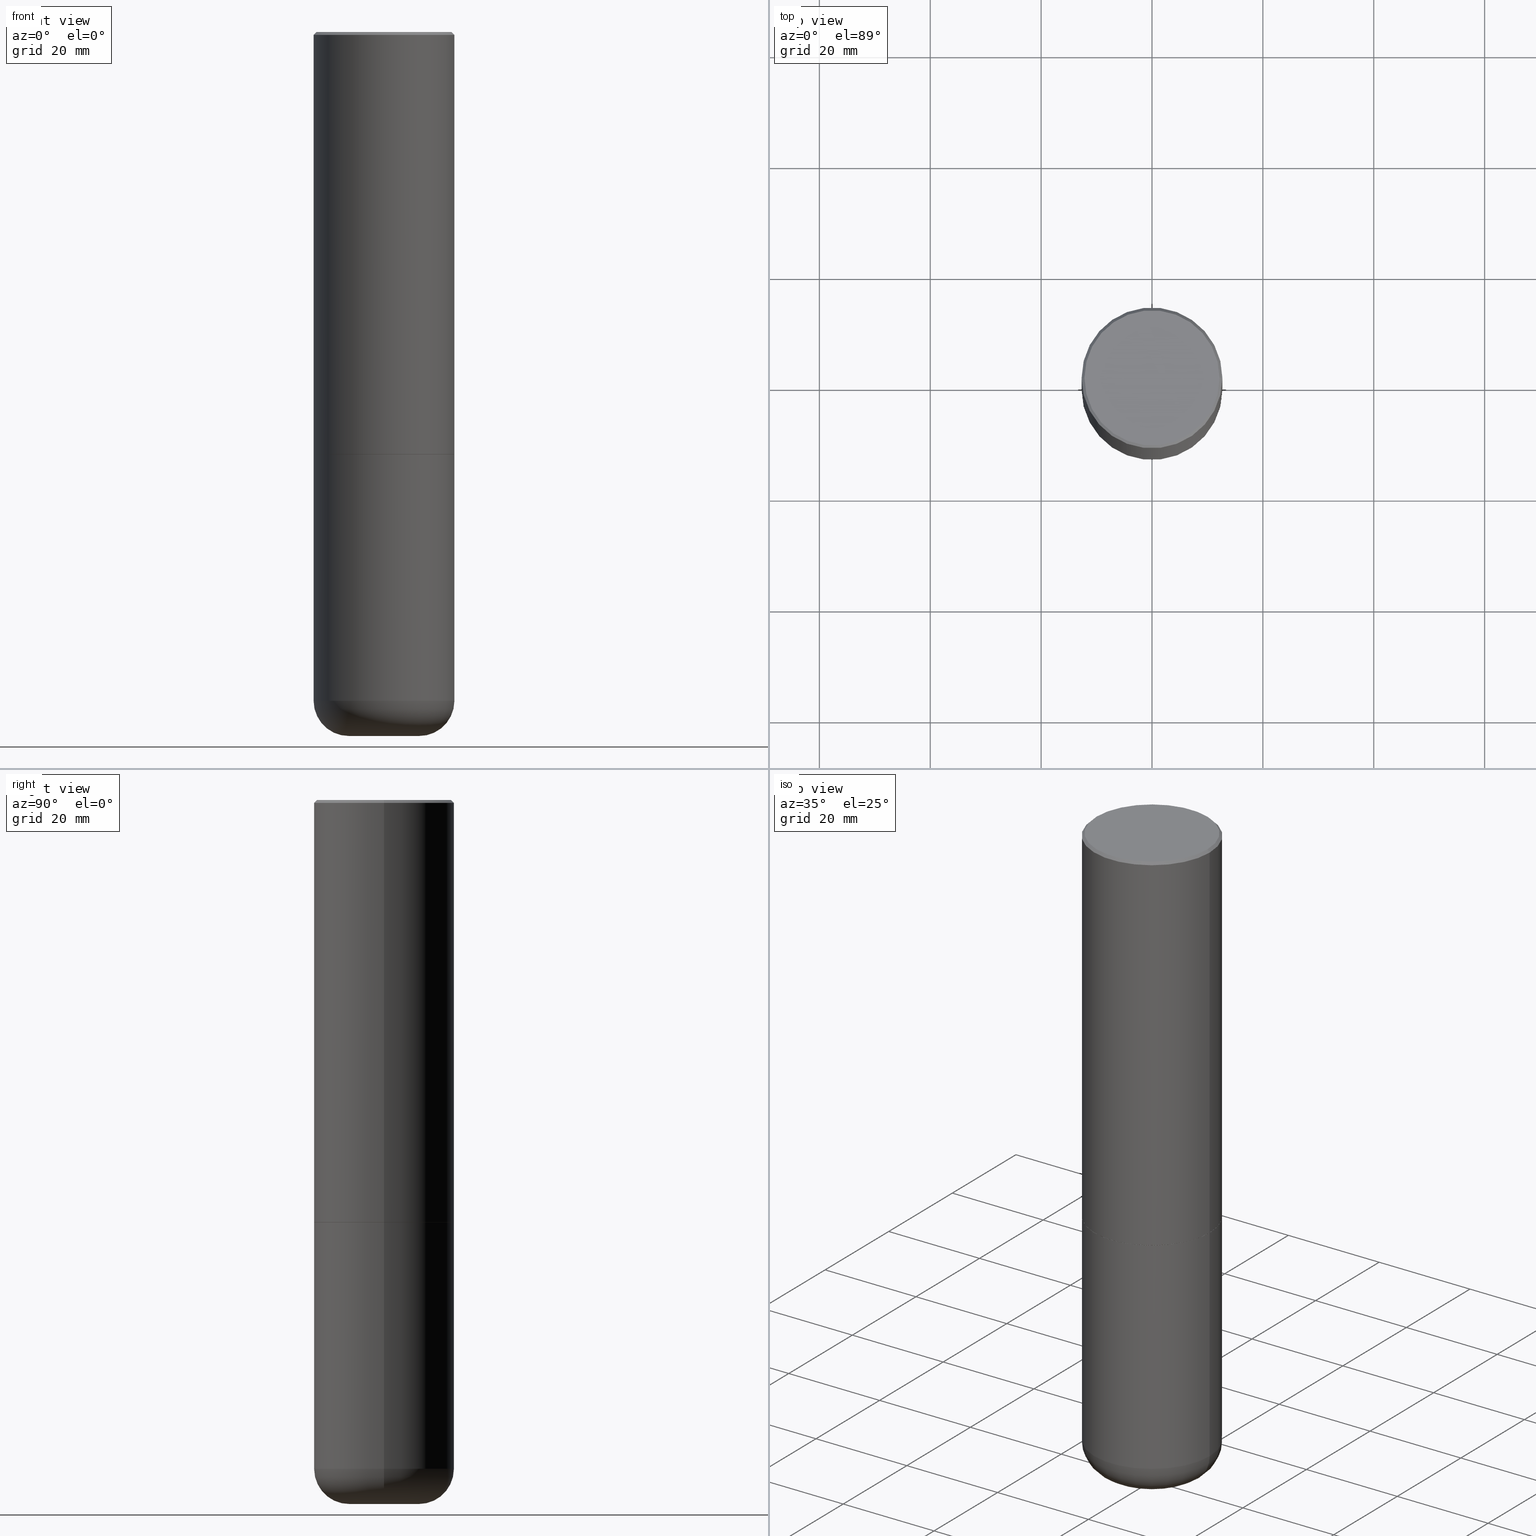
[diagram: canonical four-view strip — front | top / right | iso, engineering-drawing reading convention]
A machine part, canonical four-view strip (front | top / right | iso — engineering-drawing reading convention). The complete STEP part file that produces these views, byte-faithful:
ISO-10303-21;
HEADER;
FILE_DESCRIPTION (( 'STEP AP203' ),
    '1' );
FILE_NAME ('35738.STEP',
    '2022-11-02T20:57:26',
    ( '' ),
    ( '' ),
    'SwSTEP 2.0',
    'SolidWorks 2022',
    '' );
FILE_SCHEMA (( 'CONFIG_CONTROL_DESIGN' ));
ENDSEC;

DATA;
#1 = CARTESIAN_POINT ( 'NONE',  ( 7.336406418555412032E-29, -1.047444401652943951E-14, -3.000000000000000888 ) ) ;
#2 = CIRCLE ( 'NONE', #133, 0.1944883661254080409 ) ;
#3 = PERSON_AND_ORGANIZATION ( #244, #355 ) ;
#4 = EDGE_LOOP ( 'NONE', ( #361, #158, #465, #38 ) ) ;
#5 = EDGE_CURVE ( 'NONE', #388, #153, #377, .T. ) ;
#6 = DIRECTION ( 'NONE',  ( -2.445468806185136597E-29, 3.491481338843145583E-15, 1.000000000000000000 ) ) ;
#7 = ORIENTED_EDGE ( 'NONE', *, *, #452, .T. ) ;
#8 = DIRECTION ( 'NONE',  ( -1.000000000000000000, 6.982962677686265133E-15, 0.000000000000000000 ) ) ;
#9 = DATE_AND_TIME ( #380, #43 ) ;
#10 = ORIENTED_EDGE ( 'NONE', *, *, #85, .F. ) ;
#11 = AXIS2_PLACEMENT_3D ( 'NONE', #78, #350, #420 ) ;
#12 = APPROVAL_PERSON_ORGANIZATION ( #3, #243, #222 ) ;
#13 = DIRECTION ( 'NONE',  ( -1.000000000000000000, 6.982962677686265922E-15, -4.876176775795935793E-29 ) ) ;
#14 = ORIENTED_EDGE ( 'NONE', *, *, #261, .T. ) ;
#15 = DIRECTION ( 'NONE',  ( -2.445468806185136877E-29, 3.491481338843145188E-15, 1.000000000000000000 ) ) ;
#16 = EDGE_LOOP ( 'NONE', ( #359, #430, #419, #10 ) ) ;
#17 = ADVANCED_FACE ( 'NONE', ( #189 ), #479, .T. ) ;
#18 = APPLICATION_CONTEXT ( 'configuration controlled 3d designs of mechanical parts and assemblies' ) ;
#19 = CARTESIAN_POINT ( 'NONE',  ( 3.491481338843206325E-15, 0.4999999999999895639, -3.000000000000001776 ) ) ;
#20 = VERTEX_POINT ( 'NONE', #45 ) ;
#21 = ADVANCED_BREP_SHAPE_REPRESENTATION ( '35738', ( #310, #472, #321 ), #42 ) ;
#22 = AXIS2_PLACEMENT_3D ( 'NONE', #435, #212, #282 ) ;
#23 = DIRECTION ( 'NONE',  ( 1.000000000000000000, -6.982962677686266711E-15, 4.876176775795935793E-29 ) ) ;
#24 = AXIS2_PLACEMENT_3D ( 'NONE', #327, #98, #253 ) ;
#25 = LINE ( 'NONE', #398, #438 ) ;
#26 = EDGE_CURVE ( 'NONE', #342, #80, #62, .T. ) ;
#27 = DIRECTION ( 'NONE',  ( -0.7071067811865471286, 2.468850131082252722E-15, -0.7071067811865479058 ) ) ;
#28 = DIRECTION ( 'NONE',  ( -1.000000000000000000, 6.982962677686265922E-15, -4.876176775795935793E-29 ) ) ;
#29 = CC_DESIGN_APPROVAL ( #243, ( #315 ) ) ;
#30 = LINE ( 'NONE', #32, #231 ) ;
#31 = LINE ( 'NONE', #135, #394 ) ;
#32 = CARTESIAN_POINT ( 'NONE',  ( -0.2478183661254080850, -1.572690029271681563E-14, -5.000000000000000000 ) ) ;
#33 = AXIS2_PLACEMENT_3D ( 'NONE', #399, #326, #209 ) ;
#34 = CIRCLE ( 'NONE', #215, 0.2478183661254080850 ) ;
#35 = DIRECTION ( 'NONE',  ( 1.000000000000000000, 0.000000000000000000, 0.000000000000000000 ) ) ;
#36 = EDGE_LOOP ( 'NONE', ( #54, #322 ) ) ;
#37 = COORDINATED_UNIVERSAL_TIME_OFFSET ( 5, 0, .BEHIND. ) ;
#38 = ORIENTED_EDGE ( 'NONE', *, *, #260, .F. ) ;
#39 = APPROVAL_DATE_TIME ( #262, #64 ) ;
#40 = ORIENTED_EDGE ( 'NONE', *, *, #312, .T. ) ;
#41 = EDGE_LOOP ( 'NONE', ( #297, #109, #428, #351 ) ) ;
#42 =( GEOMETRIC_REPRESENTATION_CONTEXT ( 3 ) GLOBAL_UNCERTAINTY_ASSIGNED_CONTEXT ( ( #473 ) ) GLOBAL_UNIT_ASSIGNED_CONTEXT ( ( #439, #486, #298 ) ) REPRESENTATION_CONTEXT ( 'NONE', 'WORKASPACE' ) );
#43 = LOCAL_TIME ( 16, 57, 26.00000000000000000, #307 ) ;
#44 = DIRECTION ( 'NONE',  ( 1.000000000000000000, -6.982962677686266711E-15, 0.000000000000000000 ) ) ;
#45 = CARTESIAN_POINT ( 'NONE',  ( 1.220959705040374612E-28, -1.743206870946759098E-14, -4.992742912738427741 ) ) ;
#46 = FACE_OUTER_BOUND ( 'NONE', #425, .T. ) ;
#47 = ORIENTED_EDGE ( 'NONE', *, *, #186, .F. ) ;
#48 = CARTESIAN_POINT ( 'NONE',  ( 0.2478183661254080850, -1.915756409883010398E-14, -5.000000000000000000 ) ) ;
#49 = VERTEX_POINT ( 'NONE', #117 ) ;
#50 = FACE_OUTER_BOUND ( 'NONE', #245, .T. ) ;
#51 = ORIENTED_EDGE ( 'NONE', *, *, #403, .T. ) ;
#52 = ADVANCED_FACE ( 'NONE', ( #272 ), #124, .T. ) ;
#53 = DIRECTION ( 'NONE',  ( 0.7071067811864267805, -2.468850131080992517E-15, 0.7071067811866682540 ) ) ;
#54 = ORIENTED_EDGE ( 'NONE', *, *, #5, .T. ) ;
#55 = CARTESIAN_POINT ( 'NONE',  ( 4.890937612370322204E-31, -6.982962677686361867E-17, -0.02000000000000020164 ) ) ;
#56 = CC_DESIGN_DATE_AND_TIME_ASSIGNMENT ( #75, #454, ( #208 ) ) ;
#57 = CARTESIAN_POINT ( 'NONE',  ( 0.4999999999999990563, -3.500078625662622769E-15, -0.02000000000000020164 ) ) ;
#58 = APPROVAL_PERSON_ORGANIZATION ( #296, #64, #145 ) ;
#59 = CYLINDRICAL_SURFACE ( 'NONE', #116, 0.5000000000000000000 ) ;
#60 = DIRECTION ( 'NONE',  ( 1.000000000000000000, -6.982962677686265922E-15, 4.876176775795935793E-29 ) ) ;
#61 = CARTESIAN_POINT ( 'NONE',  ( 0.000000000000000000, 0.000000000000000000, 0.000000000000000000 ) ) ;
#62 = CIRCLE ( 'NONE', #468, 0.4989999999999999991 ) ;
#63 = CIRCLE ( 'NONE', #345, 0.4799999999999988165 ) ;
#64 = APPROVAL ( #143, 'UNSPECIFIED' ) ;
#65 = CARTESIAN_POINT ( 'NONE',  ( 0.1944883661254080409, -1.879006879171924334E-14, -4.999534596140719600 ) ) ;
#66 = FACE_OUTER_BOUND ( 'NONE', #193, .T. ) ;
#67 = DIRECTION ( 'NONE',  ( -2.445468806185136597E-29, 3.491481338843145583E-15, 1.000000000000000000 ) ) ;
#68 = EDGE_LOOP ( 'NONE', ( #277, #199, #74, #146 ) ) ;
#69 = CC_DESIGN_PERSON_AND_ORGANIZATION_ASSIGNMENT ( #267, #384, ( #214 ) ) ;
#70 = CIRCLE ( 'NONE', #220, 0.4999999999999990563 ) ;
#71 = CIRCLE ( 'NONE', #118, 0.4989999999999999991 ) ;
#72 = VERTEX_POINT ( 'NONE', #366 ) ;
#73 = DIRECTION ( 'NONE',  ( 0.000000000000000000, 0.000000000000000000, 1.000000000000000000 ) ) ;
#74 = ORIENTED_EDGE ( 'NONE', *, *, #260, .T. ) ;
#75 = DATE_AND_TIME ( #152, #176 ) ;
#76 = MECHANICAL_CONTEXT ( 'NONE', #18, 'mechanical' ) ;
#77 = ORIENTED_EDGE ( 'NONE', *, *, #449, .F. ) ;
#78 = CARTESIAN_POINT ( 'NONE',  ( 1.222620590030553347E-28, -1.745578174532602389E-14, -4.999534596140719600 ) ) ;
#79 = CIRCLE ( 'NONE', #33, 0.1944883661254080409 ) ;
#80 = VERTEX_POINT ( 'NONE', #168 ) ;
#81 = DIRECTION ( 'NONE',  ( 1.000000000000000000, -6.982962677686267499E-15, 4.876431871984425487E-29 ) ) ;
#82 = ORIENTED_EDGE ( 'NONE', *, *, #224, .F. ) ;
#83 = DIRECTION ( 'NONE',  ( -2.445468806185136597E-29, 3.491481338843145583E-15, 1.000000000000000000 ) ) ;
#84 = ADVANCED_FACE ( 'NONE', ( #206 ), #59, .T. ) ;
#85 = EDGE_CURVE ( 'NONE', #376, #379, #25, .T. ) ;
#86 = CARTESIAN_POINT ( 'NONE',  ( -4.175405657340879278E-46, 5.961372681521788801E-32, 1.707404996040164512E-17 ) ) ;
#87 = ORIENTED_EDGE ( 'NONE', *, *, #112, .T. ) ;
#88 = CONICAL_SURFACE ( 'NONE', #406, 0.4999999999999990563, 0.7853981633974477239 ) ;
#89 = CARTESIAN_POINT ( 'NONE',  ( 0.2478183661254080850, -1.918791309571464730E-14, -5.000000000000000000 ) ) ;
#90 = ORIENTED_EDGE ( 'NONE', *, *, #5, .F. ) ;
#91 = DIRECTION ( 'NONE',  ( -2.445468806185136597E-29, 3.491481338843145583E-15, 1.000000000000000000 ) ) ;
#92 = CARTESIAN_POINT ( 'NONE',  ( 4.890937612370322204E-31, -6.982962677686361867E-17, -0.02000000000000020164 ) ) ;
#93 = VECTOR ( 'NONE', #229, 39.37007874015748854 ) ;
#94 = DIRECTION ( 'NONE',  ( -2.438088387897960049E-29, 3.491481338843145188E-15, 1.000000000000000000 ) ) ;
#95 = AXIS2_PLACEMENT_3D ( 'NONE', #482, #96, #169 ) ;
#96 = DIRECTION ( 'NONE',  ( -6.982962677686266711E-15, -1.000000000000000000, 3.491481338843145583E-15 ) ) ;
#97 = DIRECTION ( 'NONE',  ( -2.445468806185136597E-29, 3.491481338843145583E-15, 1.000000000000000000 ) ) ;
#98 = DIRECTION ( 'NONE',  ( -2.445468806185136597E-29, 3.491481338843145583E-15, 1.000000000000000000 ) ) ;
#99 = ADVANCED_FACE ( 'NONE', ( #210 ), #280, .T. ) ;
#100 = VECTOR ( 'NONE', #53, 39.37007874015748143 ) ;
#101 = CARTESIAN_POINT ( 'NONE',  ( -0.5000000000000000000, -9.976793127330550292E-15, -4.750009519233957533 ) ) ;
#102 = ADVANCED_FACE ( 'NONE', ( #478 ), #140, .T. ) ;
#103 = PERSON_AND_ORGANIZATION ( #244, #355 ) ;
#104 = ORIENTED_EDGE ( 'NONE', *, *, #172, .T. ) ;
#105 = CONICAL_SURFACE ( 'NONE', #378, 0.2478183661254080850, 1.562069680534929894 ) ;
#106 = DATE_AND_TIME ( #182, #165 ) ;
#107 = ORIENTED_EDGE ( 'NONE', *, *, #194, .F. ) ;
#108 = PERSON_AND_ORGANIZATION ( #244, #355 ) ;
#109 = ORIENTED_EDGE ( 'NONE', *, *, #408, .T. ) ;
#110 = APPLICATION_CONTEXT ( 'configuration controlled 3d designs of mechanical parts and assemblies' ) ;
#111 = CARTESIAN_POINT ( 'NONE',  ( 1.222620590030553347E-28, -1.745578174532602389E-14, -4.999534596140719600 ) ) ;
#112 = EDGE_CURVE ( 'NONE', #353, #390, #164, .T. ) ;
#113 = CARTESIAN_POINT ( 'NONE',  ( 0.000000000000000000, 0.000000000000000000, 0.000000000000000000 ) ) ;
#114 = ORIENTED_EDGE ( 'NONE', *, *, #369, .F. ) ;
#115 = CARTESIAN_POINT ( 'NONE',  ( 0.5000000000000000000, -3.491481338843133355E-15, 2.438088387897967896E-29 ) ) ;
#116 = AXIS2_PLACEMENT_3D ( 'NONE', #362, #167, #23 ) ;
#117 = CARTESIAN_POINT ( 'NONE',  ( 0.5000000000000000000, -2.007605093457579787E-14, -4.750009519233957533 ) ) ;
#118 = AXIS2_PLACEMENT_3D ( 'NONE', #123, #83, #462 ) ;
#119 = CARTESIAN_POINT ( 'NONE',  ( 7.336406418555409790E-29, -1.047444401652943635E-14, -3.000000000000000444 ) ) ;
#120 = EDGE_LOOP ( 'NONE', ( #87, #302, #77, #416 ) ) ;
#121 = CARTESIAN_POINT ( 'NONE',  ( 1.222620590030553347E-28, -1.745578174532602389E-14, -4.999534596140719600 ) ) ;
#122 = ORIENTED_EDGE ( 'NONE', *, *, #136, .F. ) ;
#123 = CARTESIAN_POINT ( 'NONE',  ( 7.336406418555412032E-29, -1.047444401652943951E-14, -3.000000000000000888 ) ) ;
#124 = TOROIDAL_SURFACE ( 'NONE', #270, 0.2500000000000002776, 0.2499999999999998612 ) ;
#125 = AXIS2_PLACEMENT_3D ( 'NONE', #195, #352, #8 ) ;
#126 = CIRCLE ( 'NONE', #294, 0.4799999999999988165 ) ;
#127 = CARTESIAN_POINT ( 'NONE',  ( -0.5000000000000000000, -9.976793127330550292E-15, -3.000000000000000444 ) ) ;
#128 = CARTESIAN_POINT ( 'NONE',  ( 1.161600010836909978E-28, -1.658456959573266451E-14, -4.750009519233957533 ) ) ;
#129 = LINE ( 'NONE', #252, #248 ) ;
#130 = DIRECTION ( 'NONE',  ( -1.000000000000000000, 6.982962677686266711E-15, 0.000000000000000000 ) ) ;
#131 = CIRCLE ( 'NONE', #285, 0.2499999999999998612 ) ;
#132 = PLANE ( 'NONE',  #308 ) ;
#133 = AXIS2_PLACEMENT_3D ( 'NONE', #121, #429, #163 ) ;
#134 = ADVANCED_FACE ( 'NONE', ( #441 ), #132, .F. ) ;
#135 = CARTESIAN_POINT ( 'NONE',  ( -0.4999999999999995004, 3.552713678800497379E-15, -2.459467545127450649E-29 ) ) ;
#136 = EDGE_CURVE ( 'NONE', #434, #379, #70, .T. ) ;
#137 = PRODUCT_DEFINITION_SHAPE ( 'NONE', 'NONE',  #315 ) ;
#138 = DIRECTION ( 'NONE',  ( 1.000000000000000000, -6.982962677686267499E-15, 4.876431871984425487E-29 ) ) ;
#139 = DIRECTION ( 'NONE',  ( -2.445468806185136877E-29, 3.491481338843145188E-15, 1.000000000000000000 ) ) ;
#140 = CONICAL_SURFACE ( 'NONE', #255, 0.4989999999999999991, 0.7853981633972775267 ) ;
#141 = EDGE_CURVE ( 'NONE', #379, #434, #198, .T. ) ;
#142 =( LENGTH_UNIT ( ) NAMED_UNIT ( * ) SI_UNIT ( $, .METRE. ) );
#143 = APPROVAL_STATUS ( 'not_yet_approved' ) ;
#144 = ORIENTED_EDGE ( 'NONE', *, *, #418, .T. ) ;
#145 = APPROVAL_ROLE ( '' ) ;
#146 = ORIENTED_EDGE ( 'NONE', *, *, #418, .F. ) ;
#147 = EDGE_CURVE ( 'NONE', #455, #153, #129, .T. ) ;
#148 = AXIS2_PLACEMENT_3D ( 'NONE', #119, #197, #242 ) ;
#149 = CC_DESIGN_APPROVAL ( #205, ( #208 ) ) ;
#150 = CARTESIAN_POINT ( 'NONE',  ( 1.161600010836909978E-28, -1.658456959573266451E-14, -4.750009519233957533 ) ) ;
#151 = CC_DESIGN_PERSON_AND_ORGANIZATION_ASSIGNMENT ( #226, #381, ( #271 ) ) ;
#152 = CALENDAR_DATE ( 2022, 2, 11 ) ;
#153 = VERTEX_POINT ( 'NONE', #127 ) ;
#154 = FACE_OUTER_BOUND ( 'NONE', #265, .T. ) ;
#155 = ORIENTED_EDGE ( 'NONE', *, *, #147, .T. ) ;
#156 = CARTESIAN_POINT ( 'NONE',  ( -0.2500000000000002776, -1.480821275633241089E-14, -4.750009519233957533 ) ) ;
#157 = CONICAL_SURFACE ( 'NONE', #11, 0.1944883661254080409, 1.535889741755012583 ) ;
#158 = ORIENTED_EDGE ( 'NONE', *, *, #488, .T. ) ;
#159 = CIRCLE ( 'NONE', #364, 0.5000000000000000000 ) ;
#160 = CARTESIAN_POINT ( 'NONE',  ( 0.000000000000000000, 0.000000000000000000, 0.000000000000000000 ) ) ;
#161 = VERTEX_POINT ( 'NONE', #246 ) ;
#162 = DIRECTION ( 'NONE',  ( -1.000000000000000000, 6.982962677686265133E-15, 0.000000000000000000 ) ) ;
#163 = DIRECTION ( 'NONE',  ( 1.000000000000000000, -6.982962677686264344E-15, 0.000000000000000000 ) ) ;
#164 = CIRCLE ( 'NONE', #22, 0.2478183661254080850 ) ;
#165 = LOCAL_TIME ( 16, 57, 26.00000000000000000, #341 ) ;
#166 = CC_DESIGN_SECURITY_CLASSIFICATION ( #208, ( #271 ) ) ;
#167 = DIRECTION ( 'NONE',  ( -2.445468806185136597E-29, 3.491481338843145583E-15, 1.000000000000000000 ) ) ;
#168 = CARTESIAN_POINT ( 'NONE',  ( -0.4989999999999999991, -6.923537310738316397E-15, -3.000000000000000888 ) ) ;
#169 = DIRECTION ( 'NONE',  ( 1.000000000000000000, -6.982962677686266711E-15, 0.000000000000000000 ) ) ;
#170 = EDGE_CURVE ( 'NONE', #161, #434, #247, .T. ) ;
#171 = CARTESIAN_POINT ( 'NONE',  ( 7.336406418555412032E-29, -1.047444401652943951E-14, -3.000000000000000888 ) ) ;
#172 = EDGE_CURVE ( 'NONE', #397, #72, #79, .T. ) ;
#173 = DIRECTION ( 'NONE',  ( -2.445468806185136597E-29, 3.491481338843145583E-15, 1.000000000000000000 ) ) ;
#174 = CC_DESIGN_PERSON_AND_ORGANIZATION_ASSIGNMENT ( #450, #411, ( #315 ) ) ;
#175 = AXIS2_PLACEMENT_3D ( 'NONE', #177, #407, #28 ) ;
#176 = LOCAL_TIME ( 16, 57, 26.00000000000000000, #417 ) ;
#177 = CARTESIAN_POINT ( 'NONE',  ( 3.351822085289399659E-15, 0.4799999999999988165, -1.667374017664504893E-15 ) ) ;
#178 = CARTESIAN_POINT ( 'NONE',  ( -0.4799999999999988165, 3.386736898677831703E-15, 1.707404996037808406E-17 ) ) ;
#179 = FACE_OUTER_BOUND ( 'NONE', #16, .T. ) ;
#180 = AXIS2_PLACEMENT_3D ( 'NONE', #344, #191, #457 ) ;
#181 = CIRCLE ( 'NONE', #371, 0.5000000000000000000 ) ;
#182 = CALENDAR_DATE ( 2022, 2, 11 ) ;
#183 = ORIENTED_EDGE ( 'NONE', *, *, #404, .T. ) ;
#184 = DATE_AND_TIME ( #375, #480 ) ;
#185 = VERTEX_POINT ( 'NONE', #284 ) ;
#186 = EDGE_CURVE ( 'NONE', #49, #388, #401, .T. ) ;
#187 = ADVANCED_FACE ( 'NONE', ( #203 ), #157, .F. ) ;
#188 = COORDINATED_UNIVERSAL_TIME_OFFSET ( 5, 0, .BEHIND. ) ;
#189 = FACE_OUTER_BOUND ( 'NONE', #120, .T. ) ;
#190 = APPLICATION_PROTOCOL_DEFINITION ( 'international standard', 'config_control_design', 1994, #110 ) ;
#191 = DIRECTION ( 'NONE',  ( -2.445468806185136597E-29, 3.491481338843145583E-15, 1.000000000000000000 ) ) ;
#192 = DIRECTION ( 'NONE',  ( -2.445468806185136597E-29, 3.491481338843145583E-15, 1.000000000000000000 ) ) ;
#193 = EDGE_LOOP ( 'NONE', ( #263, #144, #7, #268 ) ) ;
#194 = EDGE_CURVE ( 'NONE', #20, #397, #238, .T. ) ;
#195 = CARTESIAN_POINT ( 'NONE',  ( 1.222734403092568523E-28, -1.745740669421572989E-14, -5.000000000000000000 ) ) ;
#196 = ORIENTED_EDGE ( 'NONE', *, *, #449, .T. ) ;
#197 = DIRECTION ( 'NONE',  ( -2.445468806185136597E-29, 3.491481338843145583E-15, 1.000000000000000000 ) ) ;
#198 = CIRCLE ( 'NONE', #293, 0.4999999999999990563 ) ;
#199 = ORIENTED_EDGE ( 'NONE', *, *, #349, .T. ) ;
#200 = VECTOR ( 'NONE', #217, 39.37007874015748143 ) ;
#201 = DIRECTION ( 'NONE',  ( -2.445468806185136597E-29, 3.491481338843145583E-15, 1.000000000000000000 ) ) ;
#202 = ORIENTED_EDGE ( 'NONE', *, *, #452, .F. ) ;
#203 = FACE_OUTER_BOUND ( 'NONE', #487, .T. ) ;
#204 = ORIENTED_EDGE ( 'NONE', *, *, #233, .T. ) ;
#205 = APPROVAL ( #421, 'UNSPECIFIED' ) ;
#206 = FACE_OUTER_BOUND ( 'NONE', #41, .T. ) ;
#207 = CONICAL_SURFACE ( 'NONE', #484, 0.4999999999999990563, 0.7853981633974477239 ) ;
#208 = SECURITY_CLASSIFICATION ( '', '', #343 ) ;
#209 = DIRECTION ( 'NONE',  ( 1.000000000000000000, -6.982962677686264344E-15, 0.000000000000000000 ) ) ;
#210 = FACE_OUTER_BOUND ( 'NONE', #68, .T. ) ;
#211 = DIRECTION ( 'NONE',  ( 2.445468806185136597E-29, -3.491481338843145583E-15, -1.000000000000000000 ) ) ;
#212 = DIRECTION ( 'NONE',  ( -2.445468806185136597E-29, 3.491481338843145583E-15, 1.000000000000000000 ) ) ;
#213 = DIRECTION ( 'NONE',  ( 1.000000000000000000, -6.982962677686266711E-15, 0.000000000000000000 ) ) ;
#214 = PRODUCT ( '35738', '35738', '', ( #76 ) ) ;
#215 = AXIS2_PLACEMENT_3D ( 'NONE', #389, #201, #279 ) ;
#216 = DIRECTION ( 'NONE',  ( -0.9999619230641714207, 6.952228252019186602E-15, -0.008726535498369011531 ) ) ;
#217 = DIRECTION ( 'NONE',  ( -0.7071067811864267805, 7.493145998869918709E-15, 0.7071067811866682540 ) ) ;
#218 = CARTESIAN_POINT ( 'NONE',  ( 0.5000000000000000000, -1.396592535537257129E-14, -3.000000000000000444 ) ) ;
#219 = ORIENTED_EDGE ( 'NONE', *, *, #194, .T. ) ;
#220 = AXIS2_PLACEMENT_3D ( 'NONE', #92, #97, #365 ) ;
#221 = CIRCLE ( 'NONE', #95, 0.2499999999999998612 ) ;
#222 = APPROVAL_ROLE ( '' ) ;
#223 = ORIENTED_EDGE ( 'NONE', *, *, #408, .F. ) ;
#224 = EDGE_CURVE ( 'NONE', #390, #455, #131, .T. ) ;
#225 = EDGE_CURVE ( 'NONE', #397, #353, #466, .T. ) ;
#226 = PERSON_AND_ORGANIZATION ( #244, #355 ) ;
#227 = ORIENTED_EDGE ( 'NONE', *, *, #225, .T. ) ;
#228 = VERTEX_POINT ( 'NONE', #306 ) ;
#229 = DIRECTION ( 'NONE',  ( 0.9993908270190957621, -6.978169709227532810E-15, -0.03489949670249840874 ) ) ;
#230 = SHAPE_DEFINITION_REPRESENTATION ( #137, #21 ) ;
#231 = VECTOR ( 'NONE', #216, 39.37007874015748854 ) ;
#232 = APPROVAL_PERSON_ORGANIZATION ( #108, #205, #264 ) ;
#233 = EDGE_CURVE ( 'NONE', #185, #228, #329, .T. ) ;
#234 = FACE_OUTER_BOUND ( 'NONE', #36, .T. ) ;
#235 = PERSON_AND_ORGANIZATION ( #244, #355 ) ;
#236 = ORIENTED_EDGE ( 'NONE', *, *, #26, .F. ) ;
#237 = LINE ( 'NONE', #273, #309 ) ;
#238 = LINE ( 'NONE', #319, #93 ) ;
#239 = CLOSED_SHELL ( 'NONE', ( #332, #17, #249, #187, #258, #291, #84, #52, #334 ) ) ;
#240 = ORIENTED_EDGE ( 'NONE', *, *, #369, .T. ) ;
#241 = AXIS2_PLACEMENT_3D ( 'NONE', #481, #295, #402 ) ;
#242 = DIRECTION ( 'NONE',  ( 1.000000000000000000, -6.982962677686266711E-15, 0.000000000000000000 ) ) ;
#243 = APPROVAL ( #301, 'UNSPECIFIED' ) ;
#244 = PERSON ( 'UNSPECIFIED', 'UNSPECIFIED', 'UNSPECIFIED', ('UNSPECIFIED'), ('UNSPECIFIED'), ('UNSPECIFIED') ) ;
#245 = EDGE_LOOP ( 'NONE', ( #490, #227, #318, #259 ) ) ;
#246 = CARTESIAN_POINT ( 'NONE',  ( 0.4799999999999988165, -3.396558832296475394E-15, 1.707404996042524007E-17 ) ) ;
#247 = LINE ( 'NONE', #57, #363 ) ;
#248 = VECTOR ( 'NONE', #470, 39.37007874015748143 ) ;
#249 = ADVANCED_FACE ( 'NONE', ( #458 ), #360, .T. ) ;
#250 = DIRECTION ( 'NONE',  ( 0.7071067811865471286, -7.319954787623254468E-15, -0.7071067811865479058 ) ) ;
#251 = DIRECTION ( 'NONE',  ( 2.445468806185136597E-29, -3.491481338843145583E-15, -1.000000000000000000 ) ) ;
#252 = CARTESIAN_POINT ( 'NONE',  ( -0.5000000000000000000, 3.552713678800500929E-15, -2.459467545127452891E-29 ) ) ;
#253 = DIRECTION ( 'NONE',  ( 1.000000000000000000, -6.982962677686266711E-15, 0.000000000000000000 ) ) ;
#254 = DIRECTION ( 'NONE',  ( -2.445468806185136597E-29, 3.491481338843145583E-15, 1.000000000000000000 ) ) ;
#255 = AXIS2_PLACEMENT_3D ( 'NONE', #475, #323, #474 ) ;
#256 = FACE_OUTER_BOUND ( 'NONE', #463, .T. ) ;
#257 = CYLINDRICAL_SURFACE ( 'NONE', #241, 0.4999999999999995004 ) ;
#258 = ADVANCED_FACE ( 'NONE', ( #154 ), #287, .F. ) ;
#259 = ORIENTED_EDGE ( 'NONE', *, *, #403, .F. ) ;
#260 = EDGE_CURVE ( 'NONE', #342, #185, #269, .T. ) ;
#261 = EDGE_CURVE ( 'NONE', #161, #376, #126, .T. ) ;
#262 = DATE_AND_TIME ( #447, #338 ) ;
#263 = ORIENTED_EDGE ( 'NONE', *, *, #440, .F. ) ;
#264 = APPROVAL_ROLE ( '' ) ;
#265 = EDGE_LOOP ( 'NONE', ( #107, #240, #274 ) ) ;
#266 = DIRECTION ( 'NONE',  ( 7.105427357601001859E-15, 1.000000000000000000, -3.491481338843145583E-15 ) ) ;
#267 = PERSON_AND_ORGANIZATION ( #244, #355 ) ;
#268 = ORIENTED_EDGE ( 'NONE', *, *, #141, .F. ) ;
#269 = LINE ( 'NONE', #313, #100 ) ;
#270 = AXIS2_PLACEMENT_3D ( 'NONE', #128, #288, #283 ) ;
#271 = PRODUCT_DEFINITION_FORMATION_WITH_SPECIFIED_SOURCE ( 'ANY', '', #214, .NOT_KNOWN. ) ;
#272 = FACE_OUTER_BOUND ( 'NONE', #357, .T. ) ;
#273 = CARTESIAN_POINT ( 'NONE',  ( -0.1944883661254080409, -1.609767674342811881E-14, -4.999534596140719600 ) ) ;
#274 = ORIENTED_EDGE ( 'NONE', *, *, #172, .F. ) ;
#275 = DIRECTION ( 'NONE',  ( 0.9999619230641714207, -6.890705306874825328E-15, -0.008726535498369011531 ) ) ;
#276 = EDGE_CURVE ( 'NONE', #153, #388, #432, .T. ) ;
#277 = ORIENTED_EDGE ( 'NONE', *, *, #488, .F. ) ;
#278 = PRODUCT_RELATED_PRODUCT_CATEGORY ( 'detail', '', ( #214 ) ) ;
#279 = DIRECTION ( 'NONE',  ( 1.000000000000000000, -6.982962677686273021E-15, 0.000000000000000000 ) ) ;
#280 = CONICAL_SURFACE ( 'NONE', #460, 0.4989999999999999991, 0.7853981633972775267 ) ;
#281 = ORIENTED_EDGE ( 'NONE', *, *, #316, .F. ) ;
#282 = DIRECTION ( 'NONE',  ( 1.000000000000000000, -6.982962677686273021E-15, 0.000000000000000000 ) ) ;
#283 = DIRECTION ( 'NONE',  ( 1.000000000000000000, -6.982962677686265133E-15, 4.883557194083112340E-29 ) ) ;
#284 = CARTESIAN_POINT ( 'NONE',  ( 0.5000000000000000000, -1.396243387403372828E-14, -2.999000000000000554 ) ) ;
#285 = AXIS2_PLACEMENT_3D ( 'NONE', #156, #266, #427 ) ;
#286 = LENGTH_MEASURE_WITH_UNIT ( LENGTH_MEASURE( 0.02539999999999999897 ), #142 );
#287 = CONICAL_SURFACE ( 'NONE', #444, 0.1944883661254080409, 1.535889741755012583 ) ;
#288 = DIRECTION ( 'NONE',  ( -2.445468806185136597E-29, 3.491481338843145583E-15, 1.000000000000000000 ) ) ;
#289 = CARTESIAN_POINT ( 'NONE',  ( -0.2478183661254081127, -1.436420360638221795E-14, -5.000000000000000000 ) ) ;
#290 = CARTESIAN_POINT ( 'NONE',  ( -0.4989999999999999991, -6.928835765086538799E-15, -3.000000000000000888 ) ) ;
#291 = ADVANCED_FACE ( 'NONE', ( #234 ), #393, .F. ) ;
#292 = CARTESIAN_POINT ( 'NONE',  ( 0.4999999999999990563, -3.500078625662622769E-15, -0.02000000000000020164 ) ) ;
#293 = AXIS2_PLACEMENT_3D ( 'NONE', #55, #91, #368 ) ;
#294 = AXIS2_PLACEMENT_3D ( 'NONE', #86, #424, #81 ) ;
#295 = DIRECTION ( 'NONE',  ( -2.445468806185136597E-29, 3.491481338843145583E-15, 1.000000000000000000 ) ) ;
#296 = PERSON_AND_ORGANIZATION ( #244, #355 ) ;
#297 = ORIENTED_EDGE ( 'NONE', *, *, #147, .F. ) ;
#298 =( NAMED_UNIT ( * ) SI_UNIT ( $, .STERADIAN. ) SOLID_ANGLE_UNIT ( ) );
#299 = ORIENTED_EDGE ( 'NONE', *, *, #440, .T. ) ;
#300 = CONICAL_SURFACE ( 'NONE', #125, 0.2478183661254080850, 1.562069680534929894 ) ;
#301 = APPROVAL_STATUS ( 'not_yet_approved' ) ;
#302 = ORIENTED_EDGE ( 'NONE', *, *, #224, .T. ) ;
#303 = DIRECTION ( 'NONE',  ( -2.445468806185136597E-29, 3.491481338843145583E-15, 1.000000000000000000 ) ) ;
#304 = DIRECTION ( 'NONE',  ( 2.445468806185136597E-29, -3.491481338843145583E-15, -1.000000000000000000 ) ) ;
#305 = EDGE_LOOP ( 'NONE', ( #236, #340 ) ) ;
#306 = CARTESIAN_POINT ( 'NONE',  ( -0.5000000000000000000, -1.717677402183223054E-15, -2.999000000000000554 ) ) ;
#307 = COORDINATED_UNIVERSAL_TIME_OFFSET ( 5, 0, .BEHIND. ) ;
#308 = AXIS2_PLACEMENT_3D ( 'NONE', #437, #94, #60 ) ;
#309 = VECTOR ( 'NONE', #391, 39.37007874015748854 ) ;
#310 = MANIFOLD_SOLID_BREP ( 'Body-Move/Copy2[1]', #239 ) ;
#311 = ORIENTED_EDGE ( 'NONE', *, *, #112, .F. ) ;
#312 = EDGE_CURVE ( 'NONE', #390, #353, #34, .T. ) ;
#313 = CARTESIAN_POINT ( 'NONE',  ( 0.4989999999999999991, -1.395894239269488685E-14, -3.000000000000000888 ) ) ;
#314 = EDGE_LOOP ( 'NONE', ( #196, #155, #90, #47 ) ) ;
#315 = PRODUCT_DEFINITION ( 'UNKNOWN', '', #271, #324 ) ;
#316 = EDGE_CURVE ( 'NONE', #72, #397, #2, .T. ) ;
#317 = CARTESIAN_POINT ( 'NONE',  ( 0.4989999999999999991, -1.395894239269488685E-14, -3.000000000000000888 ) ) ;
#318 = ORIENTED_EDGE ( 'NONE', *, *, #312, .F. ) ;
#319 = CARTESIAN_POINT ( 'NONE',  ( 0.1944883661254080409, -1.879006879171924334E-14, -4.999534596140719600 ) ) ;
#320 = AXIS2_PLACEMENT_3D ( 'NONE', #150, #385, #348 ) ;
#321 = AXIS2_PLACEMENT_3D ( 'NONE', #113, #73, #35 ) ;
#322 = ORIENTED_EDGE ( 'NONE', *, *, #276, .T. ) ;
#323 = DIRECTION ( 'NONE',  ( -2.445468806185136597E-29, 3.491481338843145583E-15, 1.000000000000000000 ) ) ;
#324 = DESIGN_CONTEXT ( 'detailed design', #110, 'design' ) ;
#325 = CC_DESIGN_DATE_AND_TIME_ASSIGNMENT ( #106, #339, ( #315 ) ) ;
#326 = DIRECTION ( 'NONE',  ( -2.445468806185136597E-29, 3.491481338843145583E-15, 1.000000000000000000 ) ) ;
#327 = CARTESIAN_POINT ( 'NONE',  ( 1.161600010836909978E-28, -1.658456959573266451E-14, -4.750009519233957533 ) ) ;
#328 = DIRECTION ( 'NONE',  ( 1.000000000000000000, -6.982962677686269077E-15, 0.000000000000000000 ) ) ;
#329 = CIRCLE ( 'NONE', #471, 0.5000000000000000000 ) ;
#330 = FACE_OUTER_BOUND ( 'NONE', #392, .T. ) ;
#331 = CIRCLE ( 'NONE', #24, 0.5000000000000000000 ) ;
#332 = ADVANCED_FACE ( 'NONE', ( #50 ), #105, .F. ) ;
#333 = DIRECTION ( 'NONE',  ( 1.000000000000000000, -6.982962677686266711E-15, 0.000000000000000000 ) ) ;
#334 = ADVANCED_FACE ( 'NONE', ( #46 ), #300, .F. ) ;
#335 = CARTESIAN_POINT ( 'NONE',  ( 7.333960949749226429E-29, -1.047095253519059492E-14, -2.999000000000000554 ) ) ;
#336 = CARTESIAN_POINT ( 'NONE',  ( 0.4999999999999995004, -3.491481338843130200E-15, 2.438088387897965374E-29 ) ) ;
#337 = CLOSED_SHELL ( 'NONE', ( #102, #491, #453, #489, #372, #99, #134, #469 ) ) ;
#338 = LOCAL_TIME ( 16, 57, 26.00000000000000000, #188 ) ;
#339 = DATE_TIME_ROLE ( 'creation_date' ) ;
#340 = ORIENTED_EDGE ( 'NONE', *, *, #349, .F. ) ;
#341 = COORDINATED_UNIVERSAL_TIME_OFFSET ( 5, 0, .BEHIND. ) ;
#342 = VERTEX_POINT ( 'NONE', #317 ) ;
#343 = SECURITY_CLASSIFICATION_LEVEL ( 'unclassified' ) ;
#344 = CARTESIAN_POINT ( 'NONE',  ( 7.336406418555409790E-29, -1.047444401652943635E-14, -3.000000000000000444 ) ) ;
#345 = AXIS2_PLACEMENT_3D ( 'NONE', #373, #254, #138 ) ;
#346 = PERSON_AND_ORGANIZATION_ROLE ( 'classification_officer' ) ;
#347 = APPROVAL_DATE_TIME ( #184, #243 ) ;
#348 = DIRECTION ( 'NONE',  ( 1.000000000000000000, -6.982962677686265133E-15, 4.883557194083112340E-29 ) ) ;
#349 = EDGE_CURVE ( 'NONE', #80, #342, #71, .T. ) ;
#350 = DIRECTION ( 'NONE',  ( 2.445468806185136597E-29, -3.491481338843145583E-15, -1.000000000000000000 ) ) ;
#351 = ORIENTED_EDGE ( 'NONE', *, *, #276, .F. ) ;
#352 = DIRECTION ( 'NONE',  ( 2.445468806185136597E-29, -3.491481338843145583E-15, -1.000000000000000000 ) ) ;
#353 = VERTEX_POINT ( 'NONE', #89 ) ;
#354 = DIRECTION ( 'NONE',  ( 1.000000000000000000, -6.982962677686266711E-15, 4.876176775795935793E-29 ) ) ;
#355 = ORGANIZATION ( 'UNSPECIFIED', 'UNSPECIFIED', '' ) ;
#356 = CC_DESIGN_PERSON_AND_ORGANIZATION_ASSIGNMENT ( #103, #415, ( #271 ) ) ;
#357 = EDGE_LOOP ( 'NONE', ( #82, #40, #183, #223 ) ) ;
#358 = CARTESIAN_POINT ( 'NONE',  ( 1.222734403092568523E-28, -1.745740669421572989E-14, -5.000000000000000000 ) ) ;
#359 = ORIENTED_EDGE ( 'NONE', *, *, #261, .F. ) ;
#360 = CYLINDRICAL_SURFACE ( 'NONE', #400, 0.5000000000000000000 ) ;
#361 = ORIENTED_EDGE ( 'NONE', *, *, #26, .T. ) ;
#362 = CARTESIAN_POINT ( 'NONE',  ( 0.000000000000000000, 0.000000000000000000, 0.000000000000000000 ) ) ;
#363 = VECTOR ( 'NONE', #250, 39.37007874015748143 ) ;
#364 = AXIS2_PLACEMENT_3D ( 'NONE', #335, #173, #333 ) ;
#365 = DIRECTION ( 'NONE',  ( 1.000000000000000000, -6.982962677686266711E-15, 0.000000000000000000 ) ) ;
#366 = CARTESIAN_POINT ( 'NONE',  ( -0.1944883661254080409, -1.609767674342811881E-14, -4.999534596140719600 ) ) ;
#367 = DIRECTION ( 'NONE',  ( -2.445468806185136877E-29, 3.491481338843145188E-15, 1.000000000000000000 ) ) ;
#368 = DIRECTION ( 'NONE',  ( 1.000000000000000000, -6.982962677686266711E-15, 0.000000000000000000 ) ) ;
#369 = EDGE_CURVE ( 'NONE', #20, #72, #237, .T. ) ;
#370 = CARTESIAN_POINT ( 'NONE',  ( 4.890937612370322204E-31, -6.982962677686361867E-17, -0.02000000000000020164 ) ) ;
#371 = AXIS2_PLACEMENT_3D ( 'NONE', #445, #405, #213 ) ;
#372 = ADVANCED_FACE ( 'NONE', ( #66 ), #446, .T. ) ;
#373 = CARTESIAN_POINT ( 'NONE',  ( -4.175405657340879278E-46, 5.961372681521788801E-32, 1.707404996040164512E-17 ) ) ;
#374 = CARTESIAN_POINT ( 'NONE',  ( 4.890937612370322204E-31, -6.982962677686361867E-17, -0.02000000000000020164 ) ) ;
#375 = CALENDAR_DATE ( 2022, 2, 11 ) ;
#376 = VERTEX_POINT ( 'NONE', #178 ) ;
#377 = CIRCLE ( 'NONE', #180, 0.5000000000000000000 ) ;
#378 = AXIS2_PLACEMENT_3D ( 'NONE', #358, #396, #162 ) ;
#379 = VERTEX_POINT ( 'NONE', #483 ) ;
#380 = CALENDAR_DATE ( 2022, 2, 11 ) ;
#381 = PERSON_AND_ORGANIZATION_ROLE ( 'design_supplier' ) ;
#382 = ORIENTED_EDGE ( 'NONE', *, *, #225, .F. ) ;
#383 = CC_DESIGN_PERSON_AND_ORGANIZATION_ASSIGNMENT ( #235, #346, ( #208 ) ) ;
#384 = PERSON_AND_ORGANIZATION_ROLE ( 'design_owner' ) ;
#385 = DIRECTION ( 'NONE',  ( -2.445468806185136597E-29, 3.491481338843145583E-15, 1.000000000000000000 ) ) ;
#386 = AXIS2_PLACEMENT_3D ( 'NONE', #19, #464, #13 ) ;
#387 = CARTESIAN_POINT ( 'NONE',  ( 7.333960949749226429E-29, -1.047095253519059492E-14, -2.999000000000000554 ) ) ;
#388 = VERTEX_POINT ( 'NONE', #218 ) ;
#389 = CARTESIAN_POINT ( 'NONE',  ( 1.222734403092568523E-28, -1.745740669421572989E-14, -5.000000000000000000 ) ) ;
#390 = VERTEX_POINT ( 'NONE', #289 ) ;
#391 = DIRECTION ( 'NONE',  ( -0.9993908270190957621, 6.856857904024565937E-15, -0.03489949670249840874 ) ) ;
#392 = EDGE_LOOP ( 'NONE', ( #412, #451, #448, #422 ) ) ;
#393 = PLANE ( 'NONE',  #386 ) ;
#394 = VECTOR ( 'NONE', #367, 39.37007874015748143 ) ;
#395 = EDGE_LOOP ( 'NONE', ( #204, #299, #122, #202 ) ) ;
#396 = DIRECTION ( 'NONE',  ( 2.445468806185136597E-29, -3.491481338843145583E-15, -1.000000000000000000 ) ) ;
#397 = VERTEX_POINT ( 'NONE', #65 ) ;
#398 = CARTESIAN_POINT ( 'NONE',  ( -0.4999999999999990563, 3.421651712066262957E-15, -0.02000000000000020164 ) ) ;
#399 = CARTESIAN_POINT ( 'NONE',  ( 1.222620590030553347E-28, -1.745578174532602389E-14, -4.999534596140719600 ) ) ;
#400 = AXIS2_PLACEMENT_3D ( 'NONE', #160, #192, #354 ) ;
#401 = LINE ( 'NONE', #115, #423 ) ;
#402 = DIRECTION ( 'NONE',  ( 1.000000000000000000, -6.982962677686267499E-15, 4.876176775795935793E-29 ) ) ;
#403 = EDGE_CURVE ( 'NONE', #72, #390, #30, .T. ) ;
#404 = EDGE_CURVE ( 'NONE', #353, #49, #221, .T. ) ;
#405 = DIRECTION ( 'NONE',  ( -2.445468806185136597E-29, 3.491481338843145583E-15, 1.000000000000000000 ) ) ;
#406 = AXIS2_PLACEMENT_3D ( 'NONE', #374, #251, #410 ) ;
#407 = DIRECTION ( 'NONE',  ( 2.438088387897960049E-29, -3.491481338843145188E-15, -1.000000000000000000 ) ) ;
#408 = EDGE_CURVE ( 'NONE', #455, #49, #181, .T. ) ;
#409 = PLANE ( 'NONE',  #175 ) ;
#410 = DIRECTION ( 'NONE',  ( -1.000000000000000000, 6.982962677686266711E-15, 0.000000000000000000 ) ) ;
#411 = PERSON_AND_ORGANIZATION_ROLE ( 'creator' ) ;
#412 = ORIENTED_EDGE ( 'NONE', *, *, #170, .F. ) ;
#413 = VECTOR ( 'NONE', #275, 39.37007874015748854 ) ;
#414 = AXIS2_PLACEMENT_3D ( 'NONE', #61, #67, #442 ) ;
#415 = PERSON_AND_ORGANIZATION_ROLE ( 'creator' ) ;
#416 = ORIENTED_EDGE ( 'NONE', *, *, #404, .F. ) ;
#417 = COORDINATED_UNIVERSAL_TIME_OFFSET ( 5, 0, .BEHIND. ) ;
#418 = EDGE_CURVE ( 'NONE', #228, #185, #159, .T. ) ;
#419 = ORIENTED_EDGE ( 'NONE', *, *, #136, .T. ) ;
#420 = DIRECTION ( 'NONE',  ( -1.000000000000000000, 6.982962677686264344E-15, 0.000000000000000000 ) ) ;
#421 = APPROVAL_STATUS ( 'not_yet_approved' ) ;
#422 = ORIENTED_EDGE ( 'NONE', *, *, #141, .T. ) ;
#423 = VECTOR ( 'NONE', #15, 39.37007874015748143 ) ;
#424 = DIRECTION ( 'NONE',  ( -2.445468806185136597E-29, 3.491481338843145583E-15, 1.000000000000000000 ) ) ;
#425 = EDGE_LOOP ( 'NONE', ( #382, #104, #51, #311 ) ) ;
#426 = EDGE_CURVE ( 'NONE', #376, #161, #63, .T. ) ;
#427 = DIRECTION ( 'NONE',  ( -1.000000000000000000, 7.105427357601000281E-15, 0.000000000000000000 ) ) ;
#428 = ORIENTED_EDGE ( 'NONE', *, *, #186, .T. ) ;
#429 = DIRECTION ( 'NONE',  ( -2.445468806185136597E-29, 3.491481338843145583E-15, 1.000000000000000000 ) ) ;
#430 = ORIENTED_EDGE ( 'NONE', *, *, #170, .T. ) ;
#431 = DIRECTION ( 'NONE',  ( -1.000000000000000000, 6.982962677686264344E-15, 0.000000000000000000 ) ) ;
#432 = CIRCLE ( 'NONE', #148, 0.5000000000000000000 ) ;
#433 = CC_DESIGN_APPROVAL ( #64, ( #271 ) ) ;
#434 = VERTEX_POINT ( 'NONE', #292 ) ;
#435 = CARTESIAN_POINT ( 'NONE',  ( 1.222734403092568523E-28, -1.745740669421572989E-14, -5.000000000000000000 ) ) ;
#436 = DIRECTION ( 'NONE',  ( -2.445468806185136597E-29, 3.491481338843145583E-15, 1.000000000000000000 ) ) ;
#437 = CARTESIAN_POINT ( 'NONE',  ( 7.336406418555412032E-29, -1.047444401652943951E-14, -3.000000000000000888 ) ) ;
#438 = VECTOR ( 'NONE', #27, 39.37007874015748143 ) ;
#439 =( CONVERSION_BASED_UNIT ( 'INCH', #286 ) LENGTH_UNIT ( ) NAMED_UNIT ( #476 ) );
#440 = EDGE_CURVE ( 'NONE', #228, #379, #31, .T. ) ;
#441 = FACE_OUTER_BOUND ( 'NONE', #305, .T. ) ;
#442 = DIRECTION ( 'NONE',  ( 1.000000000000000000, -6.982962677686267499E-15, 4.876176775795935793E-29 ) ) ;
#443 = LINE ( 'NONE', #290, #200 ) ;
#444 = AXIS2_PLACEMENT_3D ( 'NONE', #111, #304, #431 ) ;
#445 = CARTESIAN_POINT ( 'NONE',  ( 1.161600010836909978E-28, -1.658456959573266451E-14, -4.750009519233957533 ) ) ;
#446 = CYLINDRICAL_SURFACE ( 'NONE', #414, 0.4999999999999995004 ) ;
#447 = CALENDAR_DATE ( 2022, 2, 11 ) ;
#448 = ORIENTED_EDGE ( 'NONE', *, *, #85, .T. ) ;
#449 = EDGE_CURVE ( 'NONE', #49, #455, #331, .T. ) ;
#450 = PERSON_AND_ORGANIZATION ( #244, #355 ) ;
#451 = ORIENTED_EDGE ( 'NONE', *, *, #426, .F. ) ;
#452 = EDGE_CURVE ( 'NONE', #185, #434, #477, .T. ) ;
#453 = ADVANCED_FACE ( 'NONE', ( #179 ), #207, .T. ) ;
#454 = DATE_TIME_ROLE ( 'classification_date' ) ;
#455 = VERTEX_POINT ( 'NONE', #101 ) ;
#456 = APPLICATION_PROTOCOL_DEFINITION ( 'international standard', 'config_control_design', 1994, #18 ) ;
#457 = DIRECTION ( 'NONE',  ( 1.000000000000000000, -6.982962677686266711E-15, 0.000000000000000000 ) ) ;
#458 = FACE_OUTER_BOUND ( 'NONE', #314, .T. ) ;
#459 = DIRECTION ( 'NONE',  ( 1.000000000000000000, -6.982962677686269077E-15, 0.000000000000000000 ) ) ;
#460 = AXIS2_PLACEMENT_3D ( 'NONE', #171, #436, #328 ) ;
#461 = VECTOR ( 'NONE', #139, 39.37007874015748143 ) ;
#462 = DIRECTION ( 'NONE',  ( 1.000000000000000000, -6.982962677686269077E-15, 0.000000000000000000 ) ) ;
#463 = EDGE_LOOP ( 'NONE', ( #467, #14 ) ) ;
#464 = DIRECTION ( 'NONE',  ( 2.438088387897960049E-29, -3.491481338843145188E-15, -1.000000000000000000 ) ) ;
#465 = ORIENTED_EDGE ( 'NONE', *, *, #233, .F. ) ;
#466 = LINE ( 'NONE', #48, #413 ) ;
#467 = ORIENTED_EDGE ( 'NONE', *, *, #426, .T. ) ;
#468 = AXIS2_PLACEMENT_3D ( 'NONE', #1, #303, #459 ) ;
#469 = ADVANCED_FACE ( 'NONE', ( #256 ), #409, .F. ) ;
#470 = DIRECTION ( 'NONE',  ( -2.445468806185136877E-29, 3.491481338843145188E-15, 1.000000000000000000 ) ) ;
#471 = AXIS2_PLACEMENT_3D ( 'NONE', #387, #6, #44 ) ;
#472 = MANIFOLD_SOLID_BREP ( 'Body-Move/Copy2[2]', #337 ) ;
#473 = UNCERTAINTY_MEASURE_WITH_UNIT (LENGTH_MEASURE( 1.000000000000000082E-05 ), #439, 'distance_accuracy_value', 'NONE');
#474 = DIRECTION ( 'NONE',  ( 1.000000000000000000, -6.982962677686269077E-15, 0.000000000000000000 ) ) ;
#475 = CARTESIAN_POINT ( 'NONE',  ( 7.336406418555412032E-29, -1.047444401652943951E-14, -3.000000000000000888 ) ) ;
#476 = DIMENSIONAL_EXPONENTS ( 1.000000000000000000, 0.000000000000000000, 0.000000000000000000, 0.000000000000000000, 0.000000000000000000, 0.000000000000000000, 0.000000000000000000 ) ;
#477 = LINE ( 'NONE', #336, #461 ) ;
#478 = FACE_OUTER_BOUND ( 'NONE', #4, .T. ) ;
#479 = TOROIDAL_SURFACE ( 'NONE', #320, 0.2500000000000002776, 0.2499999999999998612 ) ;
#480 = LOCAL_TIME ( 16, 57, 26.00000000000000000, #37 ) ;
#481 = CARTESIAN_POINT ( 'NONE',  ( 0.000000000000000000, 0.000000000000000000, 0.000000000000000000 ) ) ;
#482 = CARTESIAN_POINT ( 'NONE',  ( 0.2500000000000002776, -1.833031026515423119E-14, -4.750009519233957533 ) ) ;
#483 = CARTESIAN_POINT ( 'NONE',  ( -0.4999999999999990563, 3.421651712066262957E-15, -0.02000000000000020164 ) ) ;
#484 = AXIS2_PLACEMENT_3D ( 'NONE', #370, #211, #130 ) ;
#485 = FACE_OUTER_BOUND ( 'NONE', #395, .T. ) ;
#486 =( NAMED_UNIT ( * ) PLANE_ANGLE_UNIT ( ) SI_UNIT ( $, .RADIAN. ) );
#487 = EDGE_LOOP ( 'NONE', ( #114, #219, #281 ) ) ;
#488 = EDGE_CURVE ( 'NONE', #80, #228, #443, .T. ) ;
#489 = ADVANCED_FACE ( 'NONE', ( #330 ), #88, .T. ) ;
#490 = ORIENTED_EDGE ( 'NONE', *, *, #316, .T. ) ;
#491 = ADVANCED_FACE ( 'NONE', ( #485 ), #257, .T. ) ;
#492 = APPROVAL_DATE_TIME ( #9, #205 ) ;
ENDSEC;
END-ISO-10303-21;
